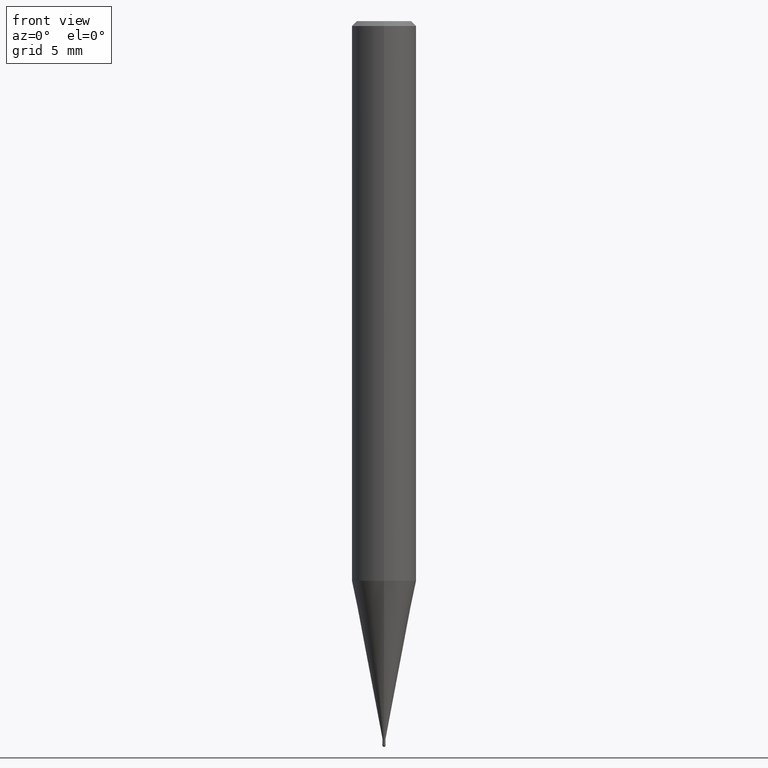
[diagram: clean part render]
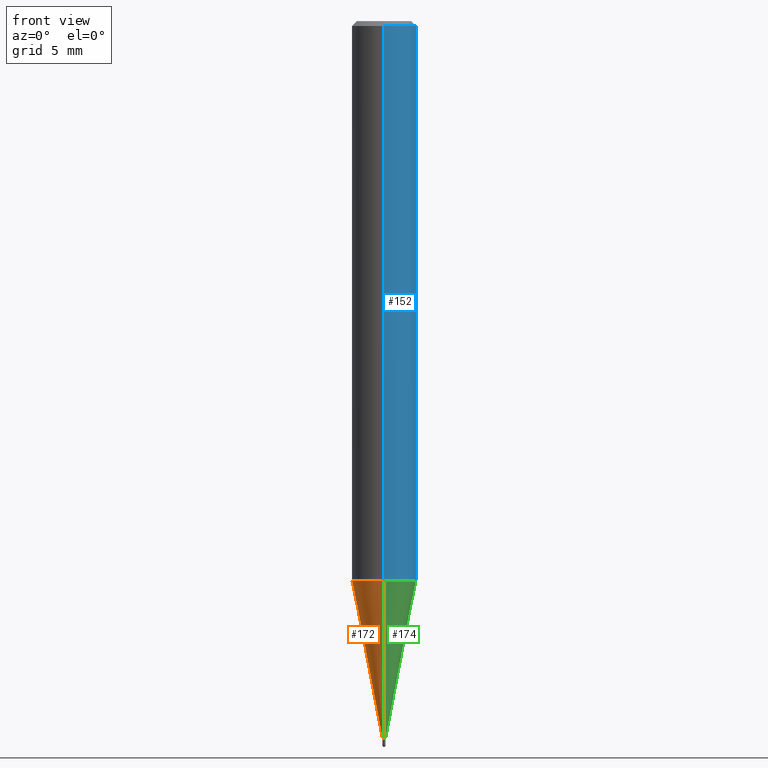
[diagram: same view with three faces highlighted in distinct colors, each labeled with its STEP entity id]
A machine part, front view with three faces highlighted in distinct colors.
Their STEP definitions:

[orange] entity #172 — the highlighted conical surface has half-angle 11 deg.
#106=VERTEX_POINT('',#248);
#126=VERTEX_POINT('',#270);
#150=VERTEX_POINT('',#298);
#160=EDGE_CURVE('',#150,#106,#310,.T.);
#162=EDGE_CURVE('',#150,#212,#312,.T.);
#172=ADVANCED_FACE('',(#323),#324,.T.);
#182=EDGE_CURVE('',#212,#126,#336,.T.);
#198=EDGE_CURVE('',#126,#106,#353,.T.);
#212=VERTEX_POINT('',#369);
#248=CARTESIAN_POINT('',(0.0,0.09495,-44.5));
#270=CARTESIAN_POINT('',(0.0,1.99995,-34.7));
#298=CARTESIAN_POINT('',(1.16276373295435E-017,-0.09495,-44.5));
#310=CIRCLE('',#482,0.09495);
#312=LINE('',#485,#486);
#323=FACE_OUTER_BOUND('',#498,.T.);
#324=CONICAL_SURFACE('',#499,1.04745,0.191993392580482);
#336=CIRCLE('',#513,1.99995);
#353=LINE('',#535,#536);
#369=CARTESIAN_POINT('',(2.44915147732706E-016,-1.99995,-34.7));
#482=AXIS2_PLACEMENT_3D('',#652,#653,#654);
#485=CARTESIAN_POINT('',(1.28271392531125E-016,-1.04745,-39.6));
#486=VECTOR('',#655,1.0);
#498=EDGE_LOOP('',(#666,#667,#668,#669));
#499=AXIS2_PLACEMENT_3D('',#670,#671,#672);
#513=AXIS2_PLACEMENT_3D('',#690,#691,#692);
#535=CARTESIAN_POINT('',(-1.28271392531125E-016,1.04745,-39.6));
#536=VECTOR('',#712,1.0);
#652=CARTESIAN_POINT('',(0.0,0.0,-44.5));
#653=DIRECTION('',(0.0,0.0,-1.0));
#654=DIRECTION('',(0.0,1.0,0.0));
#655=DIRECTION('',(2.33674533048507E-017,-0.190816038410332,0.981625814394358));
#666=ORIENTED_EDGE('',*,*,#198,.T.);
#667=ORIENTED_EDGE('',*,*,#160,.F.);
#668=ORIENTED_EDGE('',*,*,#162,.T.);
#669=ORIENTED_EDGE('',*,*,#182,.T.);
#670=CARTESIAN_POINT('',(0.0,0.0,-39.6));
#671=DIRECTION('',(-0.0,-0.0,1.0));
#672=DIRECTION('',(0.0,1.0,0.0));
#690=CARTESIAN_POINT('',(0.0,0.0,-34.7));
#691=DIRECTION('',(0.0,0.0,-1.0));
#692=DIRECTION('',(0.0,1.0,0.0));
#712=DIRECTION('',(2.33674533048507E-017,-0.190816038410332,-0.981625814394358));

[blue] entity #152 — the highlighted cylindrical surface (edge-blend (fillet) strip) has radius 2 mm, axis along (-0, -0, 1).
#108=EDGE_CURVE('',#132,#142,#250,.T.);
#132=VERTEX_POINT('',#276);
#142=VERTEX_POINT('',#288);
#152=ADVANCED_FACE('',(#300),#301,.T.);
#164=EDGE_CURVE('',#206,#132,#314,.T.);
#186=VERTEX_POINT('',#340);
#190=EDGE_CURVE('',#186,#142,#344,.T.);
#204=EDGE_CURVE('',#186,#206,#359,.T.);
#206=VERTEX_POINT('',#361);
#250=LINE('',#408,#409);
#276=CARTESIAN_POINT('',(2.44921270764475E-016,-2.0,-34.7));
#288=CARTESIAN_POINT('',(2.44921270764475E-016,-2.0,-0.299999999999997));
#300=FACE_OUTER_BOUND('',#470,.T.);
#301=CYLINDRICAL_SURFACE('',#471,2.0);
#314=CIRCLE('',#489,2.0);
#340=CARTESIAN_POINT('',(0.0,2.0,-0.299999999999997));
#344=CIRCLE('',#524,2.0);
#359=LINE('',#543,#544);
#361=CARTESIAN_POINT('',(0.0,2.0,-34.7));
#408=CARTESIAN_POINT('',(2.44921270764475E-016,-2.0,-17.5));
#409=VECTOR('',#573,1.0);
#470=EDGE_LOOP('',(#634,#635,#636,#637));
#471=AXIS2_PLACEMENT_3D('',#638,#639,#640);
#489=AXIS2_PLACEMENT_3D('',#656,#657,#658);
#524=AXIS2_PLACEMENT_3D('',#699,#700,#701);
#543=CARTESIAN_POINT('',(-2.44921270764475E-016,2.0,-17.5));
#544=VECTOR('',#717,1.0);
#573=DIRECTION('',(-0.0,-0.0,1.0));
#634=ORIENTED_EDGE('',*,*,#204,.F.);
#635=ORIENTED_EDGE('',*,*,#190,.T.);
#636=ORIENTED_EDGE('',*,*,#108,.F.);
#637=ORIENTED_EDGE('',*,*,#164,.F.);
#638=CARTESIAN_POINT('',(0.0,0.0,-17.5));
#639=DIRECTION('',(-0.0,-0.0,1.0));
#640=DIRECTION('',(0.0,1.0,0.0));
#656=CARTESIAN_POINT('',(0.0,0.0,-34.7));
#657=DIRECTION('',(0.0,0.0,-1.0));
#658=DIRECTION('',(0.0,1.0,0.0));
#699=CARTESIAN_POINT('',(0.0,0.0,-0.299999999999997));
#700=DIRECTION('',(0.0,0.0,-1.0));
#701=DIRECTION('',(0.0,1.0,0.0));
#717=DIRECTION('',(0.0,0.0,-1.0));

[green] entity #174 — the highlighted conical surface has half-angle 11 deg.
#106=VERTEX_POINT('',#248);
#122=EDGE_CURVE('',#126,#212,#266,.T.);
#126=VERTEX_POINT('',#270);
#150=VERTEX_POINT('',#298);
#162=EDGE_CURVE('',#150,#212,#312,.T.);
#174=ADVANCED_FACE('',(#326),#327,.T.);
#198=EDGE_CURVE('',#126,#106,#353,.T.);
#202=EDGE_CURVE('',#106,#150,#357,.T.);
#212=VERTEX_POINT('',#369);
#248=CARTESIAN_POINT('',(0.0,0.09495,-44.5));
#266=CIRCLE('',#431,1.99995);
#270=CARTESIAN_POINT('',(0.0,1.99995,-34.7));
#298=CARTESIAN_POINT('',(1.16276373295435E-017,-0.09495,-44.5));
#312=LINE('',#485,#486);
#326=FACE_OUTER_BOUND('',#501,.T.);
#327=CONICAL_SURFACE('',#502,1.04745,0.191993392580482);
#353=LINE('',#535,#536);
#357=CIRCLE('',#540,0.09495);
#369=CARTESIAN_POINT('',(2.44915147732706E-016,-1.99995,-34.7));
#431=AXIS2_PLACEMENT_3D('',#592,#593,#594);
#485=CARTESIAN_POINT('',(1.28271392531125E-016,-1.04745,-39.6));
#486=VECTOR('',#655,1.0);
#501=EDGE_LOOP('',(#674,#675,#676,#677));
#502=AXIS2_PLACEMENT_3D('',#678,#679,#680);
#535=CARTESIAN_POINT('',(-1.28271392531125E-016,1.04745,-39.6));
#536=VECTOR('',#712,1.0);
#540=AXIS2_PLACEMENT_3D('',#714,#715,#716);
#592=CARTESIAN_POINT('',(0.0,0.0,-34.7));
#593=DIRECTION('',(0.0,0.0,-1.0));
#594=DIRECTION('',(0.0,1.0,0.0));
#655=DIRECTION('',(2.33674533048507E-017,-0.190816038410332,0.981625814394358));
#674=ORIENTED_EDGE('',*,*,#198,.F.);
#675=ORIENTED_EDGE('',*,*,#122,.T.);
#676=ORIENTED_EDGE('',*,*,#162,.F.);
#677=ORIENTED_EDGE('',*,*,#202,.F.);
#678=CARTESIAN_POINT('',(0.0,0.0,-39.6));
#679=DIRECTION('',(-0.0,-0.0,1.0));
#680=DIRECTION('',(0.0,1.0,0.0));
#712=DIRECTION('',(2.33674533048507E-017,-0.190816038410332,-0.981625814394358));
#714=CARTESIAN_POINT('',(0.0,0.0,-44.5));
#715=DIRECTION('',(0.0,0.0,-1.0));
#716=DIRECTION('',(0.0,1.0,0.0));